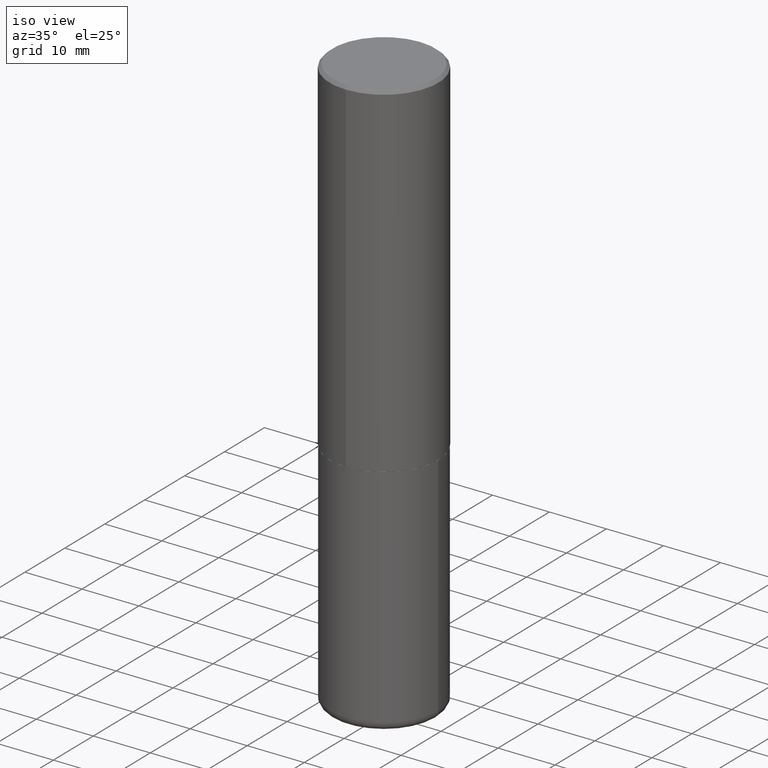
[diagram: clean part render]
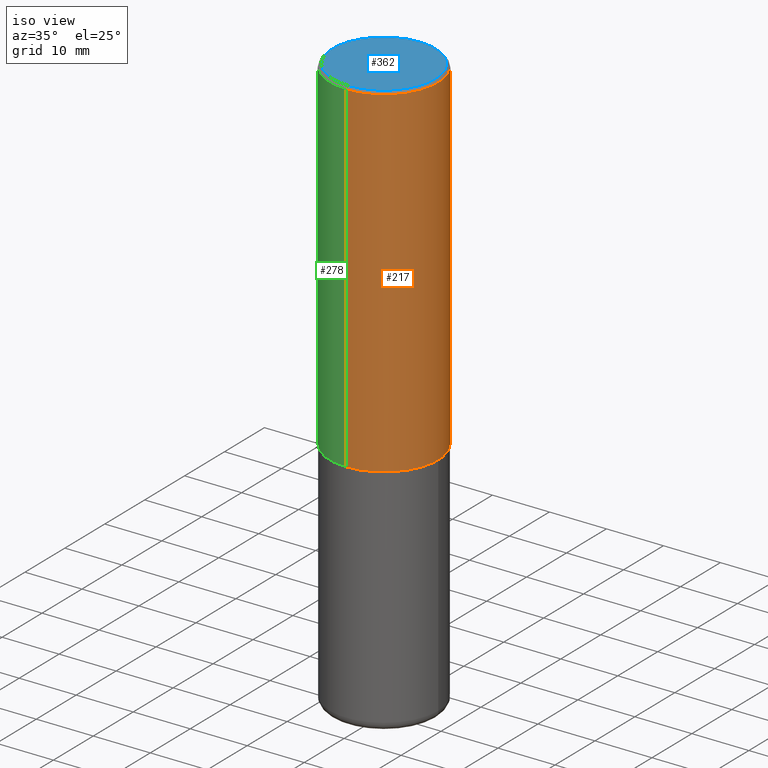
[diagram: same view with three faces highlighted in distinct colors, each labeled with its STEP entity id]
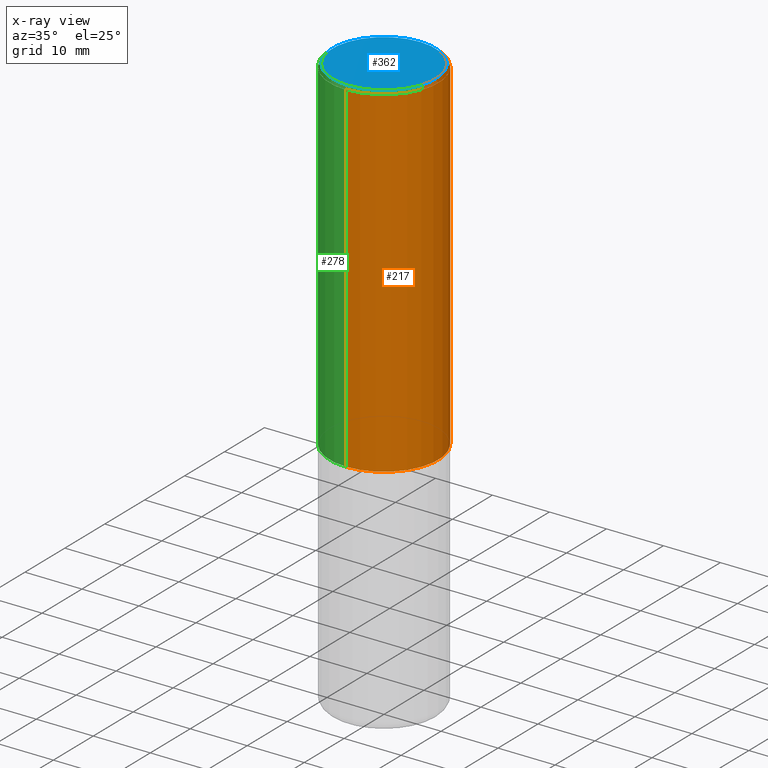
[diagram: x-ray of the same camera — body ghosted, the three highlighted faces saturated]
A machine part, iso view with three faces highlighted in distinct colors.
The next image is the same camera in x-ray (body ghosted, the three faces saturated) — at least one of them is partly hidden behind the body in this view.
Their STEP definitions:

[orange] entity #217 — the highlighted cylindrical surface (partial cylindrical patch) has radius 9.525 mm, axis along (-0, 0, 1).
#4 = CARTESIAN_POINT ( 'NONE',  ( -2.618611004132351200E-15, -0.3750000000000001665, 1.309785868171475725E-15 ) ) ;
#8 = CARTESIAN_POINT ( 'NONE',  ( 4.889148610458350090E-31, -6.985524630247905373E-17, -0.02000000000000010797 ) ) ;
#9 = FACE_OUTER_BOUND ( 'NONE', #129, .T. ) ;
#13 = VECTOR ( 'NONE', #239, 39.37007874015748143 ) ;
#28 = EDGE_CURVE ( 'NONE', #183, #114, #292, .T. ) ;
#50 = LINE ( 'NONE', #4, #13 ) ;
#60 = ORIENTED_EDGE ( 'NONE', *, *, #141, .F. ) ;
#75 = CARTESIAN_POINT ( 'NONE',  ( -2.572686749164323547E-15, -0.3750000000000001110, -0.01999999999999879652 ) ) ;
#90 = AXIS2_PLACEMENT_3D ( 'NONE', #8, #104, #305 ) ;
#94 = CARTESIAN_POINT ( 'NONE',  ( 5.803419400614030161E-29, -8.291817736104219412E-15, -2.373999999999999666 ) ) ;
#96 = DIRECTION ( 'NONE',  ( -2.444574305229161733E-29, 3.492762315123933951E-15, 1.000000000000000000 ) ) ;
#102 = EDGE_CURVE ( 'NONE', #220, #346, #181, .T. ) ;
#104 = DIRECTION ( 'NONE',  ( -2.444574305229161733E-29, 3.492762315123933951E-15, 1.000000000000000000 ) ) ;
#107 = CARTESIAN_POINT ( 'NONE',  ( -2.618611004132293613E-15, -0.3750000000000085487, -2.373999999999998334 ) ) ;
#114 = VERTEX_POINT ( 'NONE', #398 ) ;
#129 = EDGE_LOOP ( 'NONE', ( #344, #159, #250, #60 ) ) ;
#131 = CARTESIAN_POINT ( 'NONE',  ( 0.000000000000000000, 0.000000000000000000, 0.000000000000000000 ) ) ;
#140 = VECTOR ( 'NONE', #233, 39.37007874015748143 ) ;
#141 = EDGE_CURVE ( 'NONE', #183, #220, #50, .T. ) ;
#159 = ORIENTED_EDGE ( 'NONE', *, *, #297, .T. ) ;
#181 = CIRCLE ( 'NONE', #90, 0.3750000000000000555 ) ;
#183 = VERTEX_POINT ( 'NONE', #107 ) ;
#217 = ADVANCED_FACE ( 'NONE', ( #9 ), #399, .T. ) ;
#219 = DIRECTION ( 'NONE',  ( -6.982962677686266711E-15, -1.000000000000000000, 3.642463991552348591E-15 ) ) ;
#220 = VERTEX_POINT ( 'NONE', #75 ) ;
#224 = AXIS2_PLACEMENT_3D ( 'NONE', #94, #96, #219 ) ;
#225 = DIRECTION ( 'NONE',  ( -6.982962677686266711E-15, -1.000000000000000000, 3.492762315123933556E-15 ) ) ;
#233 = DIRECTION ( 'NONE',  ( -2.444574305229161733E-29, 3.492762315123933951E-15, 1.000000000000000000 ) ) ;
#239 = DIRECTION ( 'NONE',  ( -2.444574305229161733E-29, 3.492762315123933951E-15, 1.000000000000000000 ) ) ;
#250 = ORIENTED_EDGE ( 'NONE', *, *, #102, .F. ) ;
#262 = LINE ( 'NONE', #395, #140 ) ;
#280 = CARTESIAN_POINT ( 'NONE',  ( 2.618611004132350411E-15, 0.3749999999999999445, -0.02000000000000141595 ) ) ;
#292 = CIRCLE ( 'NONE', #224, 0.3750000000000002776 ) ;
#297 = EDGE_CURVE ( 'NONE', #114, #346, #262, .T. ) ;
#305 = DIRECTION ( 'NONE',  ( -6.982962677686265922E-15, -1.000000000000000000, 3.494488891895536035E-15 ) ) ;
#344 = ORIENTED_EDGE ( 'NONE', *, *, #28, .T. ) ;
#346 = VERTEX_POINT ( 'NONE', #280 ) ;
#359 = AXIS2_PLACEMENT_3D ( 'NONE', #131, #368, #225 ) ;
#368 = DIRECTION ( 'NONE',  ( -2.444574305229161733E-29, 3.492762315123933951E-15, 1.000000000000000000 ) ) ;
#395 = CARTESIAN_POINT ( 'NONE',  ( 2.664535259100376486E-15, 0.3750000000000001665, -1.309785868171475725E-15 ) ) ;
#398 = CARTESIAN_POINT ( 'NONE',  ( 2.664535259100406068E-15, 0.3749999999999920619, -2.374000000000001442 ) ) ;
#399 = CYLINDRICAL_SURFACE ( 'NONE', #359, 0.3750000000000001665 ) ;

[blue] entity #362 — the highlighted planar face has unit normal (0, -0, -1).
#18 = FACE_OUTER_BOUND ( 'NONE', #387, .T. ) ;
#36 = VERTEX_POINT ( 'NONE', #321 ) ;
#85 = PLANE ( 'NONE',  #154 ) ;
#86 = ORIENTED_EDGE ( 'NONE', *, *, #304, .T. ) ;
#147 = AXIS2_PLACEMENT_3D ( 'NONE', #222, #364, #356 ) ;
#148 = CARTESIAN_POINT ( 'NONE',  ( -2.504081769186607821E-15, -0.3549999999999997602, 1.509301655325001413E-15 ) ) ;
#154 = AXIS2_PLACEMENT_3D ( 'NONE', #339, #311, #361 ) ;
#164 = DIRECTION ( 'NONE',  ( -2.444574305229161733E-29, 3.492762315123933951E-15, 1.000000000000000000 ) ) ;
#222 = CARTESIAN_POINT ( 'NONE',  ( -6.584975069595768119E-45, 9.408489944411256093E-31, 2.693710334560058270E-16 ) ) ;
#255 = CARTESIAN_POINT ( 'NONE',  ( -6.584975069595768119E-45, 9.408489944411256093E-31, 2.693710334560058270E-16 ) ) ;
#282 = CIRCLE ( 'NONE', #147, 0.3549999999999997602 ) ;
#304 = EDGE_CURVE ( 'NONE', #36, #381, #282, .T. ) ;
#311 = DIRECTION ( 'NONE',  ( 2.444574305229161733E-29, -3.492762315123933951E-15, -1.000000000000000000 ) ) ;
#313 = CIRCLE ( 'NONE', #411, 0.3549999999999997602 ) ;
#321 = CARTESIAN_POINT ( 'NONE',  ( 2.548781377355486718E-15, 0.3549999999999997602, -9.705595884129897592E-16 ) ) ;
#327 = ORIENTED_EDGE ( 'NONE', *, *, #349, .T. ) ;
#339 = CARTESIAN_POINT ( 'NONE',  ( 2.478951750578623026E-15, 0.3549999999999997602, -1.105245105140992969E-15 ) ) ;
#349 = EDGE_CURVE ( 'NONE', #381, #36, #313, .T. ) ;
#356 = DIRECTION ( 'NONE',  ( -6.982962677686266711E-15, -1.000000000000000000, 3.492762315123933556E-15 ) ) ;
#361 = DIRECTION ( 'NONE',  ( 6.982962677686265922E-15, 1.000000000000000000, -3.492762315123933951E-15 ) ) ;
#362 = ADVANCED_FACE ( 'NONE', ( #18 ), #85, .F. ) ;
#364 = DIRECTION ( 'NONE',  ( -2.444574305229161733E-29, 3.492762315123933951E-15, 1.000000000000000000 ) ) ;
#381 = VERTEX_POINT ( 'NONE', #148 ) ;
#387 = EDGE_LOOP ( 'NONE', ( #86, #327 ) ) ;
#411 = AXIS2_PLACEMENT_3D ( 'NONE', #255, #164, #418 ) ;
#418 = DIRECTION ( 'NONE',  ( -6.982962677686266711E-15, -1.000000000000000000, 3.492762315123933556E-15 ) ) ;

[green] entity #278 — the highlighted cylindrical surface (partial cylindrical patch) has radius 9.525 mm, axis along (-0, 0, 1).
#4 = CARTESIAN_POINT ( 'NONE',  ( -2.618611004132351200E-15, -0.3750000000000001665, 1.309785868171475725E-15 ) ) ;
#10 = CARTESIAN_POINT ( 'NONE',  ( 0.000000000000000000, 0.000000000000000000, 0.000000000000000000 ) ) ;
#13 = VECTOR ( 'NONE', #239, 39.37007874015748143 ) ;
#19 = ORIENTED_EDGE ( 'NONE', *, *, #141, .T. ) ;
#20 = FACE_OUTER_BOUND ( 'NONE', #258, .T. ) ;
#30 = CIRCLE ( 'NONE', #319, 0.3750000000000000555 ) ;
#45 = DIRECTION ( 'NONE',  ( -2.444574305229161733E-29, 3.492762315123933951E-15, 1.000000000000000000 ) ) ;
#50 = LINE ( 'NONE', #4, #13 ) ;
#75 = CARTESIAN_POINT ( 'NONE',  ( -2.572686749164323547E-15, -0.3750000000000001110, -0.01999999999999879652 ) ) ;
#97 = ORIENTED_EDGE ( 'NONE', *, *, #201, .T. ) ;
#107 = CARTESIAN_POINT ( 'NONE',  ( -2.618611004132293613E-15, -0.3750000000000085487, -2.373999999999998334 ) ) ;
#114 = VERTEX_POINT ( 'NONE', #398 ) ;
#117 = CIRCLE ( 'NONE', #392, 0.3750000000000002776 ) ;
#130 = CARTESIAN_POINT ( 'NONE',  ( 5.803419400614030161E-29, -8.291817736104219412E-15, -2.373999999999999666 ) ) ;
#140 = VECTOR ( 'NONE', #233, 39.37007874015748143 ) ;
#141 = EDGE_CURVE ( 'NONE', #183, #220, #50, .T. ) ;
#183 = VERTEX_POINT ( 'NONE', #107 ) ;
#201 = EDGE_CURVE ( 'NONE', #114, #183, #117, .T. ) ;
#202 = DIRECTION ( 'NONE',  ( -2.444574305229161733E-29, 3.492762315123933951E-15, 1.000000000000000000 ) ) ;
#207 = EDGE_CURVE ( 'NONE', #346, #220, #30, .T. ) ;
#220 = VERTEX_POINT ( 'NONE', #75 ) ;
#233 = DIRECTION ( 'NONE',  ( -2.444574305229161733E-29, 3.492762315123933951E-15, 1.000000000000000000 ) ) ;
#239 = DIRECTION ( 'NONE',  ( -2.444574305229161733E-29, 3.492762315123933951E-15, 1.000000000000000000 ) ) ;
#258 = EDGE_LOOP ( 'NONE', ( #415, #97, #19, #274 ) ) ;
#259 = DIRECTION ( 'NONE',  ( -6.982962677686265922E-15, -1.000000000000000000, 3.494488891895536035E-15 ) ) ;
#262 = LINE ( 'NONE', #395, #140 ) ;
#266 = DIRECTION ( 'NONE',  ( -2.444574305229161733E-29, 3.492762315123933951E-15, 1.000000000000000000 ) ) ;
#274 = ORIENTED_EDGE ( 'NONE', *, *, #207, .F. ) ;
#276 = DIRECTION ( 'NONE',  ( -6.982962677686266711E-15, -1.000000000000000000, 3.492762315123933556E-15 ) ) ;
#278 = ADVANCED_FACE ( 'NONE', ( #20 ), #343, .T. ) ;
#280 = CARTESIAN_POINT ( 'NONE',  ( 2.618611004132350411E-15, 0.3749999999999999445, -0.02000000000000141595 ) ) ;
#297 = EDGE_CURVE ( 'NONE', #114, #346, #262, .T. ) ;
#303 = CARTESIAN_POINT ( 'NONE',  ( 4.889148610458350090E-31, -6.985524630247905373E-17, -0.02000000000000010797 ) ) ;
#319 = AXIS2_PLACEMENT_3D ( 'NONE', #303, #266, #259 ) ;
#343 = CYLINDRICAL_SURFACE ( 'NONE', #393, 0.3750000000000001665 ) ;
#346 = VERTEX_POINT ( 'NONE', #280 ) ;
#363 = DIRECTION ( 'NONE',  ( -6.982962677686266711E-15, -1.000000000000000000, 3.642463991552348591E-15 ) ) ;
#392 = AXIS2_PLACEMENT_3D ( 'NONE', #130, #202, #363 ) ;
#393 = AXIS2_PLACEMENT_3D ( 'NONE', #10, #45, #276 ) ;
#395 = CARTESIAN_POINT ( 'NONE',  ( 2.664535259100376486E-15, 0.3750000000000001665, -1.309785868171475725E-15 ) ) ;
#398 = CARTESIAN_POINT ( 'NONE',  ( 2.664535259100406068E-15, 0.3749999999999920619, -2.374000000000001442 ) ) ;
#415 = ORIENTED_EDGE ( 'NONE', *, *, #297, .F. ) ;